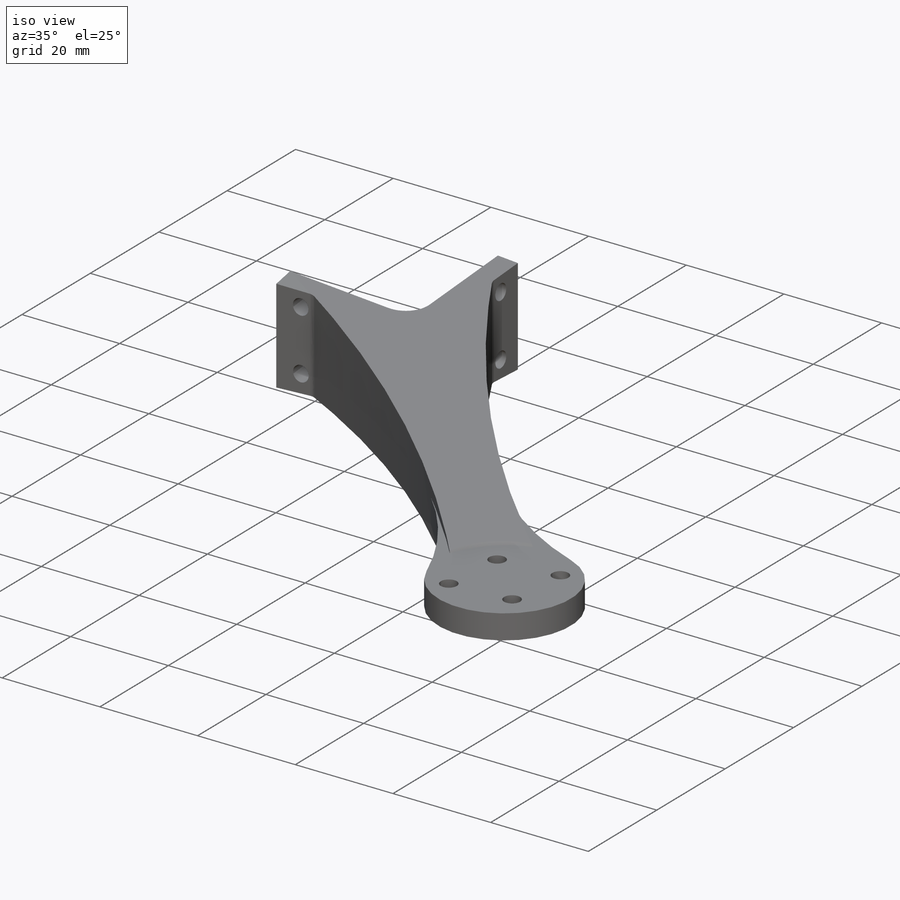
[diagram: iso view]
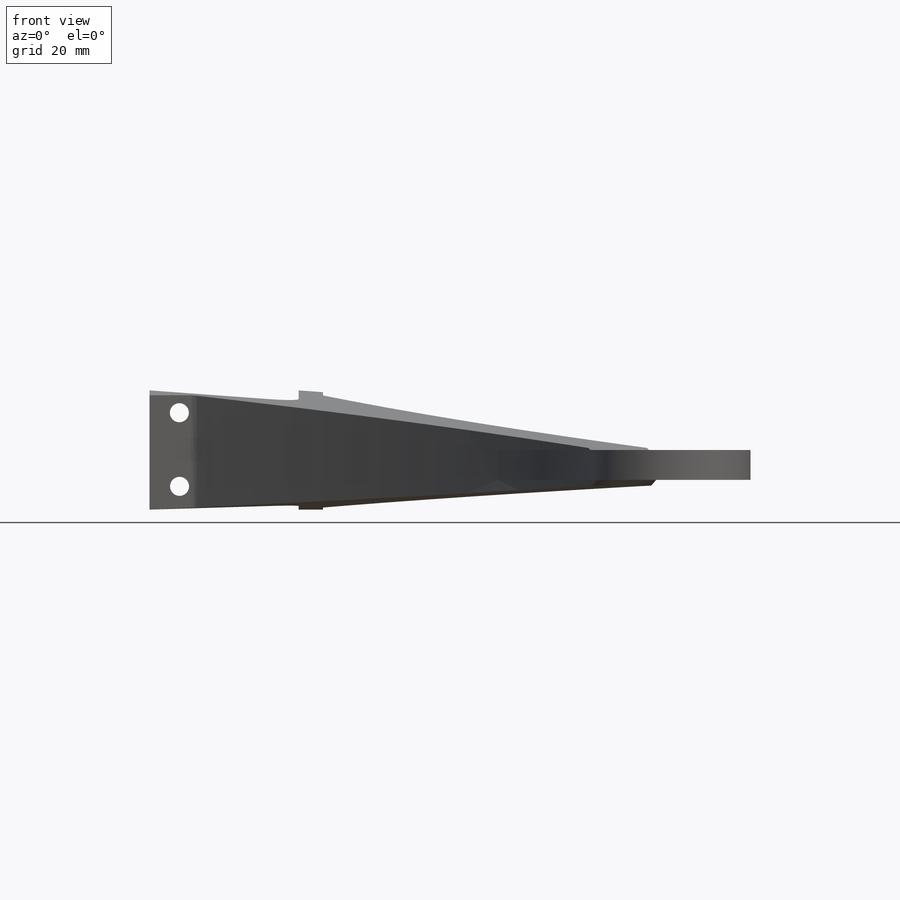
[diagram: front view]
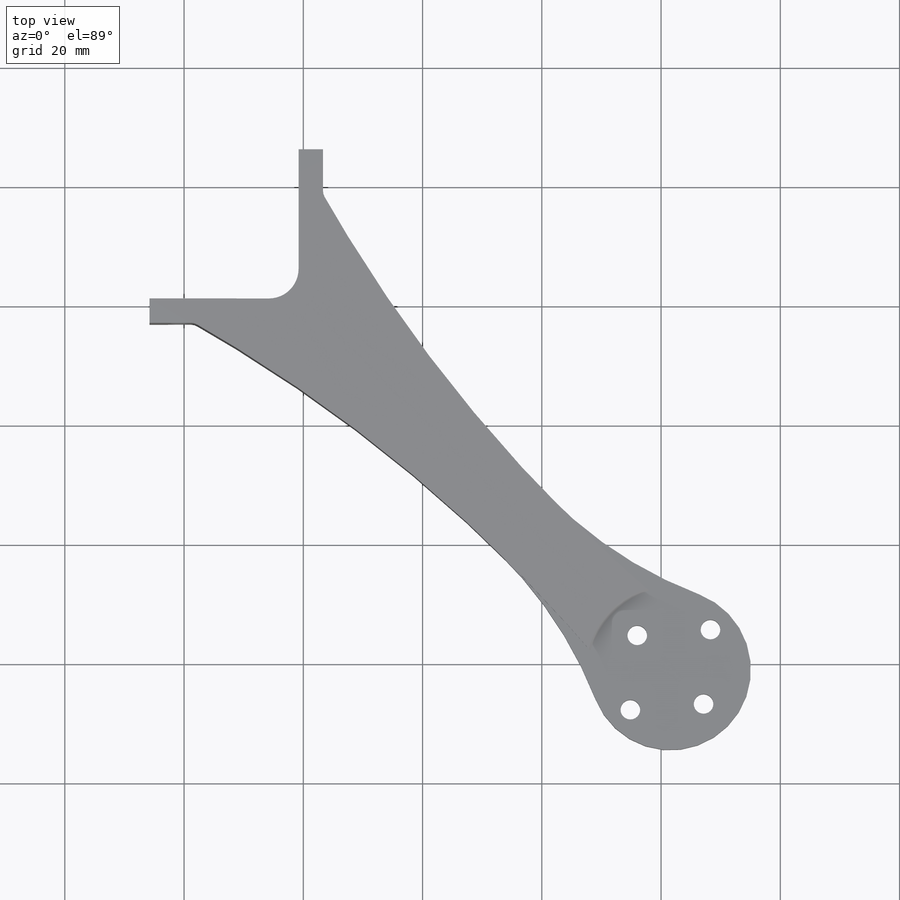
[diagram: top view]
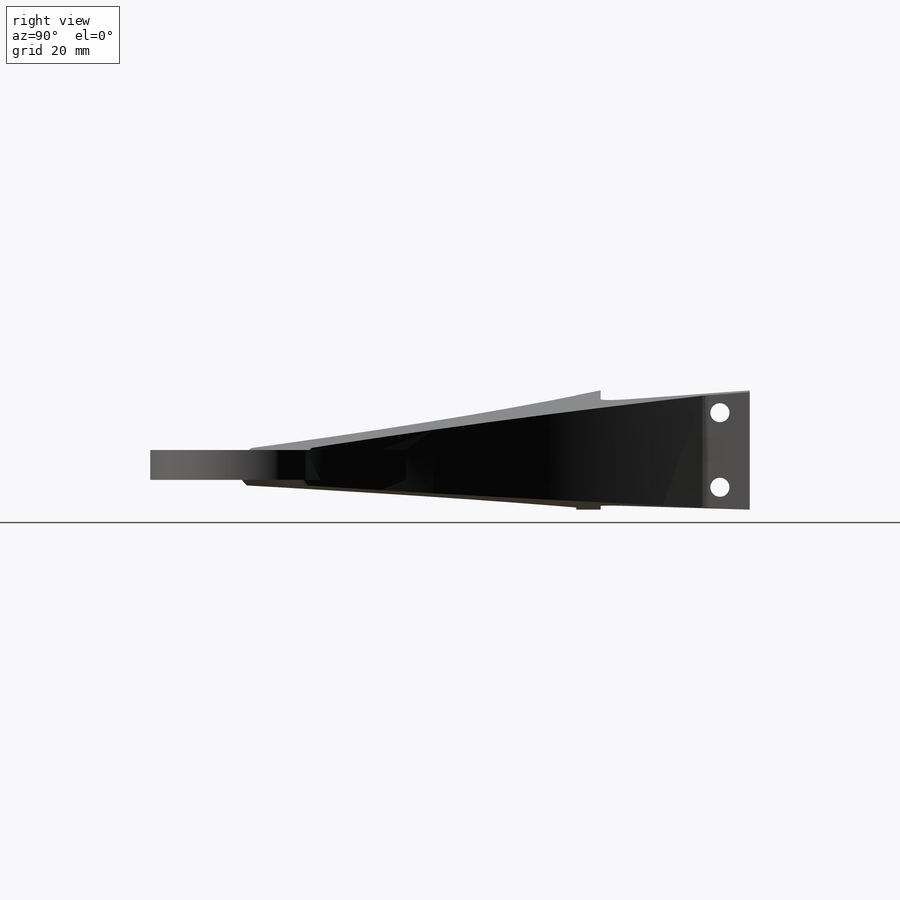
[diagram: right view]
SOLIDWORKS PART (.sldprt)
format: sldprt  version: not decoded by parser v0  size: 668,160 bytes
history: native  units: mm
features: sketch x25, cut_extrude x14, extrude x11, fillet x5, chamfer x2, material x1 (+13 scaffold rows collapsed)
feature tree (71):
  scaffold x13  (default folders/planes/origin — collapsed)
  material  "Material <not specified>"
  sketch  "Sketch1"  dims[c1.""=500.0mm c1.D9=200.0mm c1.D10=500.0mm c1.D1=25.0mm c1.D2=25.0mm c1.D3=60.0mm c1.D4=60.0mm c1.D5=10.0mm c1.D6=10.0mm c1.D7=15.0mm c1.D8=~44.393398mm c2.D3=100.0mm c2.D4=10.0mm c2.D5=20.0mm c2.D6=250.0mm c2.D8=250.0mm c2.D7=85.0mm c2.D9=85.0mm c3.D5=7.07mm c3.D7=~7.072135mm c3.D9=20.0mm c3.D11=250.0mm c3.D6=7.07mm c3.D8=250.0mm c3.D10=250.0mm c3.D1=520.0mm c3.D2=50.0mm c3.D3=50.0mm c4.D1=100.0mm c4.D2=25.0mm c4.D3=25.0mm c4.D4=250.0mm c4.D5=250.0mm c4.D6=95.0mm c4.D7=~89.302855mm c5.D1=70.0mm c5.D7=250.0mm c5.D8=250.0mm c5.D5=7.0mm c6.D8=~8.321658mm c6.D5=7.0mm c7.D8=7.0mm c7.D9=7.0mm c7.D10=7.0mm c7.D11=250.0mm c7.D12=250.0mm]
  extrude  "Boss-Extrude2"  Depth=20mm
  sketch  "Sketch2"
  extrude  "Boss-Extrude3"  Depth=20mm
  sketch  "Sketch3"  dims[D1=20.0mm D2=5.0mm D3=5.0mm D4=0.0mm]
  cut_extrude  "Cut-Extrude1"  Depth=50mm
  sketch  "Sketch4"
  cut_extrude  "Cut-Extrude2"  Depth=50mm
  fillet  "Fillet2"  Radius=50mm
  sketch  "Sketch7"
  extrude  "Boss-Extrude4"  Depth=50mm
  sketch  "Sketch8"  dims[D1=12.5mm D2=5.0mm D3=3.75mm D4=3.5mm]
  cut_extrude  "Cut-Extrude3"  Depth=50mm
  sketch  "Sketch9"  dims[D1=3.75mm D2=12.5mm D3=5.0mm D4=5.0mm]
  cut_extrude  "Cut-Extrude4"  Depth=50mm
  sketch  "Sketch10"  dims[D1=~3.643273mm]
  cut_extrude  "Cut-Extrude5"  [1 undecoded]
  sketch  "Sketch11"  dims[D1=~1.026662mm]
  extrude  "Boss-Extrude5"  Depth=3mm
  sketch  "Sketch12"  dims[c1.D1=~1.506255mm c1.D3=~1.840777mm c2.D1=5.0mm c2.D2=3.75mm c2.D3=3.75mm]
  cut_extrude  "Cut-Extrude6"  Depth=5mm
  sketch  "Sketch13"  dims[D1=~0.984351mm]
  extrude  "Boss-Extrude6"  Depth=3mm
  fillet  "Fillet6"  Radius=5mm
  sketch  "Sketch14"
  extrude  "Boss-Extrude7"  [1 undecoded]
  sketch  "Sketch15"
  extrude  "Boss-Extrude9"  [1 undecoded]
  sketch  "Sketch16"
  extrude  "Boss-Extrude10"  [1 undecoded]
  fillet  "Fillet7"  Radius=2mm
  sketch  "Sketch17"  dims[c1.D1=3.3mm c1.D2=12.0mm c1.D3=12.0mm c2.D2=9.9mm c2.D3=~9.89899mm c2.D4=3.0mm c2.D5=16.0mm c2.D6=0.0mm c2.D7=0.0mm]
  cut_extrude  "Cut-Extrude7"  Depth=10mm
  sketch  "Sketch18"  dims[D1=0.0mm D2=0.0mm]
  cut_extrude  "Cut-Extrude8"  Depth=10mm
  sketch  "Sketch19"  dims[c1.D1=3.3mm c1.D3=27.0mm c2.D1=0.0mm c2.D2=8.0mm]
  extrude  "Boss-Extrude11"  Depth=5mm
  sketch  "Sketch20"
  cut_extrude  "Cut-Extrude9"  Depth=5mm
  sketch  "Sketch21"  dims[D1=9.5mm D2=9.5mm D3=0.0mm D4=0.0mm]
  cut_extrude  "Cut-Extrude11"  Depth=10mm
  sketch  "Sketch23"
  cut_extrude  "Cut-Extrude12"  Depth=10mm
  chamfer  "Chamfer1"  Distance=1mm Angle=48deg
  sketch  "Sketch24"
  extrude  "Boss-Extrude12"  [1 undecoded]
  fillet  "Fillet9"  Radius=70mm
  sketch  "Sketch25"
  cut_extrude  "Cut-Extrude14"  Depth=75mm
  chamfer  "Chamfer2"  Distance=0.5mm Angle=48deg
  sketch  "Sketch26"
  extrude  "Boss-Extrude13"  [1 undecoded]
  fillet  "Fillet10"  Radius=2mm
  sketch  "Sketch27"
  cut_extrude  "Cut-Extrude15"  Depth=75mm
  sketch  "Sketch28"  dims[D1=50.0mm]
  cut_extrude  "Cut-Extrude16"  Depth=75mm
decode coverage: 39 of 57 modeling features carry decoded parameters
note: ~ marks probable driven/reference dimensions
note: 6 parameter values undecoded
summary: no parameter record found for 6 features
note: suppression state not decoded; provenance and decode notes live in map.json
